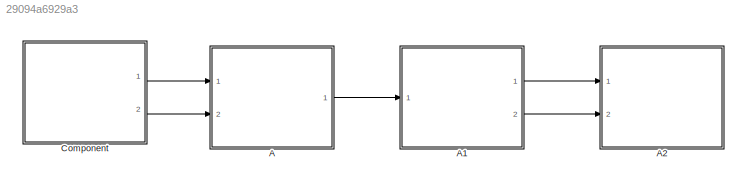
MODEL slx_29094a6929a3
KIND model
CONFIG AbsTol = auto
CONFIG EnableMultiTasking = off
CONFIG FixedStep = auto
CONFIG MaxStep = auto
CONFIG MinStep = auto
CONFIG RelTol = 1e-3
CONFIG SampleTimeConstraint = Unconstrained
CONFIG SolverName = VariableStepAuto
CONFIG StartTime = 0.0
CONFIG StopTime = 10.0
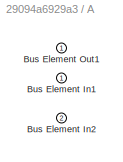
BLOCK [SubSystem] A
  PortSchema = {"entries":[{"content":{"headerSize":26,"margin":15,"minimumSpacing":25,"sides":[{"content":{"connectorIds":["In1","In2"]},"type":"ConnectorPlacement.EquallySpacedRectSide","uuid":"47eadd57-f61a-46ab-8544-95fc6583d676"},{"content":{"connectorIds":["Out1"],"side":"RIGHT"},"type":"ConnectorPlacement.EquallySpacedRectSide","uuid":"fe63b160-fd0f-4914-9524-7eebf5a6f2dc"},{"content":{"connectorIds":[],"...<+294ch>
  Ports = [2, 1]
  RequestExecContextInheritance = off
BLOCK [Inport] A/Bus Element In1
BLOCK [Inport] A/Bus Element In2
  Port = 2
BLOCK [Outport] A/Bus Element Out1
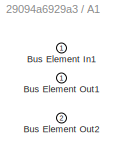
BLOCK [SubSystem] A1
  PortSchema = {"entries":[{"content":{"headerSize":26,"margin":15,"minimumSpacing":25,"sides":[{"content":{"connectorIds":["In1"]},"type":"ConnectorPlacement.EquallySpacedRectSide","uuid":"47eadd57-f61a-46ab-8544-95fc6583d676"},{"content":{"connectorIds":["Out1","Out2"],"side":"RIGHT"},"type":"ConnectorPlacement.EquallySpacedRectSide","uuid":"fe63b160-fd0f-4914-9524-7eebf5a6f2dc"},{"content":{"connectorIds":[],...<+295ch>
  Ports = [1, 2]
  RequestExecContextInheritance = off
BLOCK [Inport] A1/Bus Element In1
BLOCK [Outport] A1/Bus Element Out1
BLOCK [Outport] A1/Bus Element Out2
  Port = 2
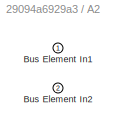
BLOCK [SubSystem] A2
  PortSchema = {"entries":[{"content":{"headerSize":26,"margin":15,"minimumSpacing":25,"sides":[{"content":{"connectorIds":["In1","In2"]},"type":"ConnectorPlacement.EquallySpacedRectSide","uuid":"47eadd57-f61a-46ab-8544-95fc6583d676"},{"content":{"connectorIds":[],"side":"RIGHT"},"type":"ConnectorPlacement.EquallySpacedRectSide","uuid":"fe63b160-fd0f-4914-9524-7eebf5a6f2dc"},{"content":{"connectorIds":[],"side":...<+288ch>
  Ports = [2]
  RequestExecContextInheritance = off
BLOCK [Inport] A2/Bus Element In1
BLOCK [Inport] A2/Bus Element In2
  Port = 2
BLOCK [ModelReference] Component
  ModelNameDialog = mVdp
  ModelReferenceVersion = 4.0
  PortSchema = {"entries":[{"content":{"headerSize":38,"margin":15,"minimumSpacing":25,"sides":[{"content":{"connectorIds":[]},"type":"ConnectorPlacement.EquallySpacedRectSide","uuid":"3eedf7c3-f8d3-4763-bec4-b7ec770b4e71"},{"content":{"connectorIds":["Out1","Out2"],"side":"RIGHT"},"type":"ConnectorPlacement.EquallySpacedRectSide","uuid":"b9adaaed-715c-46eb-941b-09c2ba984293"},{"content":{"connectorIds":[],"side...<+290ch>
  Ports = [0, 2]
LINE A1:1 -> A2:1
LINE A1:2 -> A2:2
LINE A:1 -> A1:1
LINE Component:1 -> A:1
LINE Component:2 -> A:2
